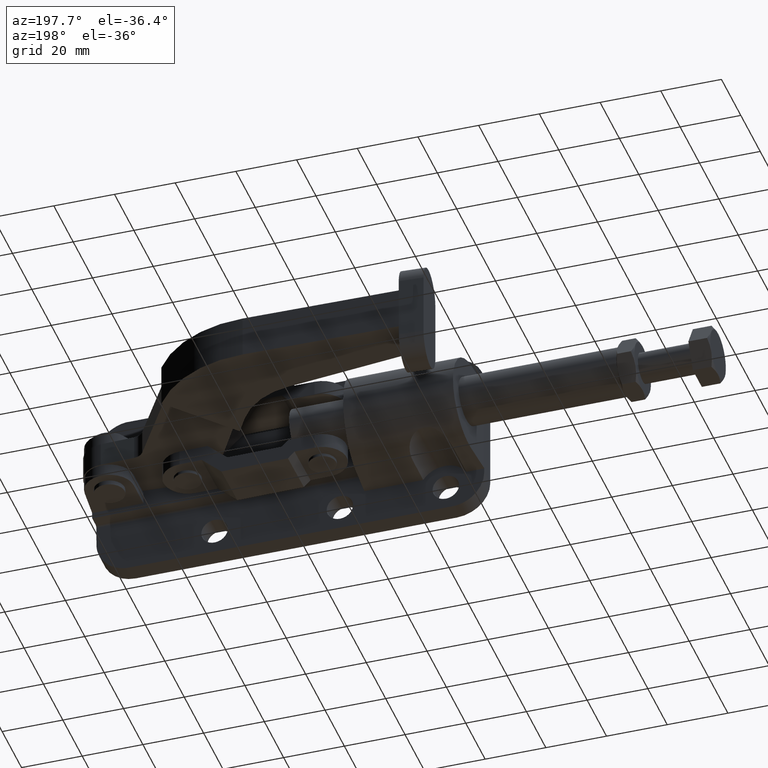
[diagram: clean part render]
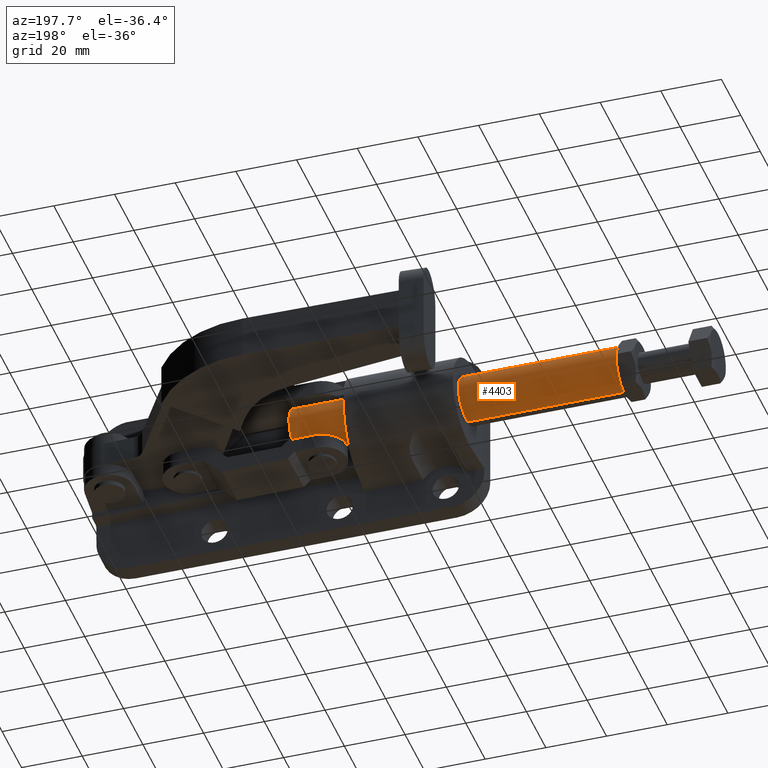
[diagram: same view with one face highlighted and labeled with its STEP entity id]
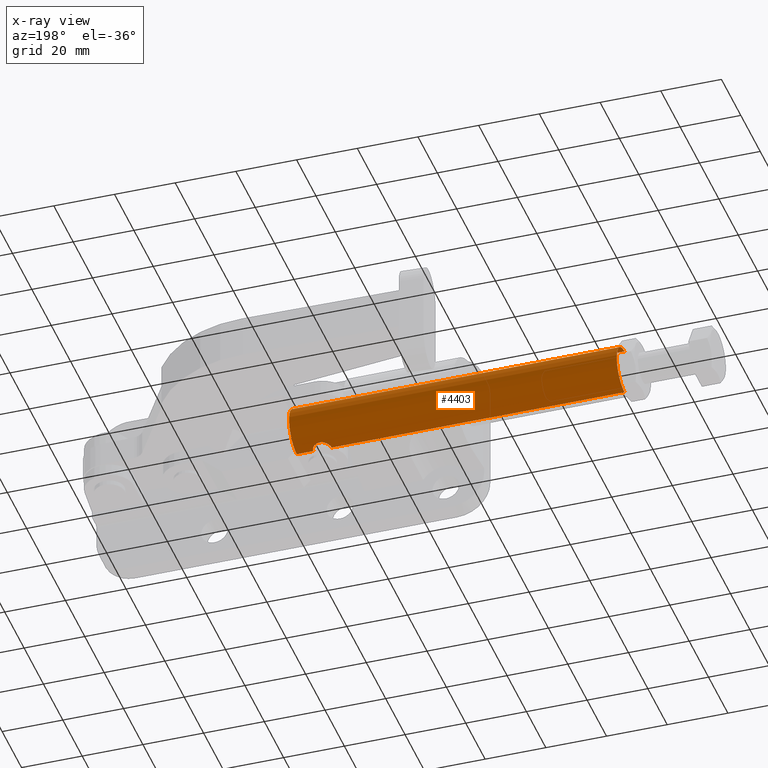
[diagram: x-ray of the same camera — body ghosted, the highlighted face saturated]
A machine part, auxiliary view. The second image highlights one B-rep face of the part: STEP entity #4403.
The next image is the same camera in x-ray: the body ghosted, the highlighted face saturated — about 0% of this face is hidden behind the body in this view.
In plain terms, the highlighted cylindrical surface (edge-blend (fillet) strip) has radius 7.95 mm, axis along (1, 0, 0).
Its self-contained STEP definition (entity closure, byte-faithful):
#28 = CARTESIAN_POINT ( 'NONE',  ( 46.10827037891992600, 22.10703702126681900, -7.807601283260506600 ) ) ;
#56 = ORIENTED_EDGE ( 'NONE', *, *, #5562, .F. ) ;
#227 = EDGE_LOOP ( 'NONE', ( #5686, #4411, #4743, #5108, #56, #2293, #3341, #5021 ) ) ;
#281 = CARTESIAN_POINT ( 'NONE',  ( 45.70954390057778500, 20.80017735060853200, -7.949999999999998400 ) ) ;
#310 = VERTEX_POINT ( 'NONE', #607 ) ;
#422 = EDGE_CURVE ( 'NONE', #6040, #4684, #6646, .T. ) ;
#456 = CARTESIAN_POINT ( 'NONE',  ( 46.45232010374655100, 22.58557041746324100, 7.699363798610372500 ) ) ;
#477 = CARTESIAN_POINT ( 'NONE',  ( -50.79045609942222900, 20.60000000000001200, -7.950000000000002000 ) ) ;
#482 = CARTESIAN_POINT ( 'NONE',  ( 50.54157647819240400, 22.98358563884341500, 7.585118646985551800 ) ) ;
#510 = CIRCLE ( 'NONE', #2287, 7.950000000000000200 ) ;
#517 = DIRECTION ( 'NONE',  ( 1.000000000000000000, 1.246135698874698700E-019, 2.584817083796331200E-017 ) ) ;
#607 = CARTESIAN_POINT ( 'NONE',  ( 45.70954390057777100, 20.60000000000000900, 7.950000000000002000 ) ) ;
#632 = VERTEX_POINT ( 'NONE', #477 ) ;
#681 = DIRECTION ( 'NONE',  ( 0.0000000000000000000, 0.0000000000000000000, -1.000000000000000000 ) ) ;
#683 = CARTESIAN_POINT ( 'NONE',  ( 45.80635890054544700, 21.38100077770596000, -7.913893248792821700 ) ) ;
#719 = EDGE_CURVE ( 'NONE', #3958, #310, #4561, .T. ) ;
#758 = CARTESIAN_POINT ( 'NONE',  ( 47.92462154198967300, 23.50230406885167900, -7.401412073730917900 ) ) ;
#872 = B_SPLINE_CURVE_WITH_KNOTS ( 'NONE', 3,
 ( #2516, #4033, #5647, #2541, #6186, #3056, #6714, #3568, #456, #4075, #971, #4600, #1486, #5145, #2041, #5679, #2554, #6212, #3087, #6735, #3588, #482, #4102, #989, #4623, #1520, #5172, #2059, #5705, #2581, #6233, #3105 ),
 .UNSPECIFIED., .F., .F.,
 ( 4, 2, 2, 2, 2, 2, 2, 2, 2, 2, 2, 2, 2, 2, 2, 4 ),
 ( 0.0000000000000000000, 0.0005917444956825114800, 0.001183488991365023000, 0.001775233487047534700, 0.002366977982730045900, 0.003550466974095084500, 0.004142211469777603800, 0.004733955965460123100, 0.005325700461142643200, 0.005917444956825162500, 0.006509189452507682700, 0.007100933948190202800, 0.007692678443872723000, 0.008284422939555242300, 0.008876167435237763300, 0.009467911930920282600 ),
 .UNSPECIFIED. ) ;
#931 = VERTEX_POINT ( 'NONE', #2770 ) ;
#958 = AXIS2_PLACEMENT_3D ( 'NONE', #1696, #5335, #2224 ) ;
#971 = CARTESIAN_POINT ( 'NONE',  ( 47.19488597691647400, 23.21879294738598500, 7.508001503940175100 ) ) ;
#989 = CARTESIAN_POINT ( 'NONE',  ( 50.96918433522413500, 22.58289311160799400, 7.700066225073173100 ) ) ;
#1180 = LINE ( 'NONE', #4876, #3948 ) ;
#1335 = CARTESIAN_POINT ( 'NONE',  ( 46.01595278244329300, 21.93549455668214800, -7.839189190632097000 ) ) ;
#1392 = CARTESIAN_POINT ( 'NONE',  ( 57.20954390057776400, 20.60000000000001200, 8.673617379884033500E-016 ) ) ;
#1412 = CARTESIAN_POINT ( 'NONE',  ( 51.70954390057777800, 20.79715833779634000, -7.950000000000000200 ) ) ;
#1464 = CARTESIAN_POINT ( 'NONE',  ( 47.37361603727662600, 23.29324723126108400, -7.480332959099664300 ) ) ;
#1486 = CARTESIAN_POINT ( 'NONE',  ( 47.92603717636311000, 23.50263468589526300, 7.401281237322391100 ) ) ;
#1520 = CARTESIAN_POINT ( 'NONE',  ( 51.30967900592926900, 22.10910097557167100, 7.807214461076218200 ) ) ;
#1551 = CARTESIAN_POINT ( 'NONE',  ( 51.61164528413525700, 21.38559418277185000, -7.913493221241958000 ) ) ;
#1593 = VERTEX_POINT ( 'NONE', #3092 ) ;
#1680 = VERTEX_POINT ( 'NONE', #4437 ) ;
#1689 = CARTESIAN_POINT ( 'NONE',  ( -73.27645174115444600, 20.60000000000001200, -7.950000000000002000 ) ) ;
#1696 = CARTESIAN_POINT ( 'NONE',  ( -50.79045609942222900, 20.60000000000001200, -1.924240712511634300E-015 ) ) ;
#1766 = DIRECTION ( 'NONE',  ( 1.000000000000000000, 1.246135698874698700E-019, 2.584817083796331200E-017 ) ) ;
#1935 = DIRECTION ( 'NONE',  ( 0.0000000000000000000, 0.0000000000000000000, -1.000000000000000000 ) ) ;
#1950 = CARTESIAN_POINT ( 'NONE',  ( 51.70954390057777800, 20.60000000000001200, -7.949999999999998400 ) ) ;
#2009 = VECTOR ( 'NONE', #5330, 1000.000000000000000 ) ;
#2040 = CARTESIAN_POINT ( 'NONE',  ( 57.20954390057776400, 20.60000000000001200, -7.950000000000000200 ) ) ;
#2041 = CARTESIAN_POINT ( 'NONE',  ( 48.51006876174925300, 23.59988806751441400, 7.362280325882051300 ) ) ;
#2046 = EDGE_CURVE ( 'NONE', #6040, #1593, #6239, .T. ) ;
#2059 = CARTESIAN_POINT ( 'NONE',  ( 51.55407475443481500, 21.57306082656374400, 7.892332227627609800 ) ) ;
#2092 = CYLINDRICAL_SURFACE ( 'NONE', #5782, 7.950000000000000200 ) ;
#2224 = DIRECTION ( 'NONE',  ( 0.0000000000000000000, 0.0000000000000000000, -1.000000000000000000 ) ) ;
#2252 = FACE_OUTER_BOUND ( 'NONE', #227, .T. ) ;
#2287 = AXIS2_PLACEMENT_3D ( 'NONE', #1392, #5045, #1935 ) ;
#2293 = ORIENTED_EDGE ( 'NONE', *, *, #422, .F. ) ;
#2366 = CARTESIAN_POINT ( 'NONE',  ( 46.44999307118173000, 22.58299983075176300, -7.700039230911754000 ) ) ;
#2368 = CARTESIAN_POINT ( 'NONE',  ( 46.72506967562716800, 22.85825603727578000, -7.623855465343574200 ) ) ;
#2431 = CARTESIAN_POINT ( 'NONE',  ( 51.40282568450562900, 21.93597371415484400, -7.839085292503983600 ) ) ;
#2516 = CARTESIAN_POINT ( 'NONE',  ( 45.70954390057777100, 20.60000000000000900, 7.950000000000002000 ) ) ;
#2541 = CARTESIAN_POINT ( 'NONE',  ( 45.80678821327443700, 21.38279435466995800, 7.913734826000008700 ) ) ;
#2554 = CARTESIAN_POINT ( 'NONE',  ( 49.10648097847115400, 23.58014800800031100, 7.370411073511662400 ) ) ;
#2581 = CARTESIAN_POINT ( 'NONE',  ( 51.68998689680648800, 20.99561852160177400, 7.942557423195459000 ) ) ;
#2592 = DIRECTION ( 'NONE',  ( 1.000000000000000000, 1.246135698874698700E-019, 2.584817083796331200E-017 ) ) ;
#2623 = CARTESIAN_POINT ( 'NONE',  ( 45.86416367370671300, 21.57097383443210200, -7.892632177562751000 ) ) ;
#2696 = EDGE_CURVE ( 'NONE', #310, #931, #872, .T. ) ;
#2770 = CARTESIAN_POINT ( 'NONE',  ( 51.70954390057777800, 20.60000000000001200, 7.950000000000002000 ) ) ;
#2793 = DIRECTION ( 'NONE',  ( 1.000000000000000000, 1.246135698874698700E-019, 2.584817083796331200E-017 ) ) ;
#2888 = VECTOR ( 'NONE', #2592, 1000.000000000000000 ) ;
#3056 = CARTESIAN_POINT ( 'NONE',  ( 46.01676654564914100, 21.93699362758754700, 7.838911342165327600 ) ) ;
#3087 = CARTESIAN_POINT ( 'NONE',  ( 49.68092775833135700, 23.44528239585019600, 7.423844993068448700 ) ) ;
#3092 = CARTESIAN_POINT ( 'NONE',  ( 45.70954390057777100, 20.60000000000001200, -7.949999999999998400 ) ) ;
#3105 = CARTESIAN_POINT ( 'NONE',  ( 51.70954390057777800, 20.60000000000001200, 7.950000000000002000 ) ) ;
#3191 = CARTESIAN_POINT ( 'NONE',  ( 47.19914561535870200, 23.19940004098251100, -7.513905794024750200 ) ) ;
#3253 = CARTESIAN_POINT ( 'NONE',  ( 51.55404719991598500, 21.57334141625862100, -7.892318447418389800 ) ) ;
#3341 = ORIENTED_EDGE ( 'NONE', *, *, #2046, .T. ) ;
#3342 = CARTESIAN_POINT ( 'NONE',  ( 49.49298379769301400, 23.50258338543266500, -7.401300513450507900 ) ) ;
#3383 = CARTESIAN_POINT ( 'NONE',  ( 51.70954390057777800, 20.60000000000001200, -7.949999999999998400 ) ) ;
#3427 = CARTESIAN_POINT ( 'NONE',  ( 49.10689103142457400, 23.58008114644375300, -7.370437976158744900 ) ) ;
#3502 = CARTESIAN_POINT ( 'NONE',  ( 47.73475735230729800, 23.44395412936826200, -7.424344195801907600 ) ) ;
#3568 = CARTESIAN_POINT ( 'NONE',  ( 46.32694754825211400, 22.43342974076256600, 7.737481681254128500 ) ) ;
#3588 = CARTESIAN_POINT ( 'NONE',  ( 50.21848999607696100, 23.20017413724920600, 7.513627608720628200 ) ) ;
#3933 = EDGE_CURVE ( 'NONE', #931, #1680, #1180, .T. ) ;
#3948 = VECTOR ( 'NONE', #1766, 1000.000000000000000 ) ;
#3958 = VERTEX_POINT ( 'NONE', #6483 ) ;
#4033 = CARTESIAN_POINT ( 'NONE',  ( 45.70954390057777100, 20.80021796150009500, 7.950000000000000200 ) ) ;
#4075 = CARTESIAN_POINT ( 'NONE',  ( 46.86361238174352200, 22.99640009900677700, 7.585547950524615500 ) ) ;
#4102 = CARTESIAN_POINT ( 'NONE',  ( 50.69419124622716300, 22.85809984264603800, 7.623901236454797100 ) ) ;
#4153 = VECTOR ( 'NONE', #517, 1000.000000000000000 ) ;
#4211 = CARTESIAN_POINT ( 'NONE',  ( 46.87471235425713400, 22.98150724325568100, -7.585781706907951600 ) ) ;
#4212 = CARTESIAN_POINT ( 'NONE',  ( 51.68981801630086900, 20.99663188929052300, -7.942494339125791400 ) ) ;
#4298 = CARTESIAN_POINT ( 'NONE',  ( 48.51047029410928200, 23.59991052985415300, -7.362271172820296500 ) ) ;
#4312 = EDGE_CURVE ( 'NONE', #632, #1593, #4419, .T. ) ;
#4321 = CARTESIAN_POINT ( 'NONE',  ( 48.90591171820003800, 23.60008886003805600, -7.362198505959081100 ) ) ;
#4403 = ADVANCED_FACE ( 'NONE', ( #2252 ), #2092, .T. ) ;
#4411 = ORIENTED_EDGE ( 'NONE', *, *, #719, .T. ) ;
#4419 = LINE ( 'NONE', #1689, #2009 ) ;
#4437 = CARTESIAN_POINT ( 'NONE',  ( 57.20954390057776400, 20.60000000000001200, 7.950000000000000200 ) ) ;
#4470 = CARTESIAN_POINT ( 'NONE',  ( 46.32449865685387600, 22.43012122640469700, -7.738246227570099800 ) ) ;
#4561 = LINE ( 'NONE', #5377, #2888 ) ;
#4587 = CARTESIAN_POINT ( 'NONE',  ( 51.30850779807412500, 22.11104594502966900, -7.806827108133613400 ) ) ;
#4600 = CARTESIAN_POINT ( 'NONE',  ( 47.73512602208299400, 23.44404220781212800, 7.424307354312240600 ) ) ;
#4623 = CARTESIAN_POINT ( 'NONE',  ( 51.09224506101713100, 22.43325489242321800, 7.737516390620141000 ) ) ;
#4684 = VERTEX_POINT ( 'NONE', #2040 ) ;
#4743 = ORIENTED_EDGE ( 'NONE', *, *, #2696, .T. ) ;
#4843 = CARTESIAN_POINT ( 'NONE',  ( 50.69042628164203300, 22.86154964779978000, -7.622899134152822500 ) ) ;
#4845 = CARTESIAN_POINT ( 'NONE',  ( 50.04329712118512700, 23.29439518361024500, -7.479921503772144900 ) ) ;
#4876 = CARTESIAN_POINT ( 'NONE',  ( -73.27645174115444600, 20.60000000000001200, 7.949999999999998400 ) ) ;
#4889 = CARTESIAN_POINT ( 'NONE',  ( 49.68019969865234500, 23.44543325007049700, -7.423779409939945700 ) ) ;
#5021 = ORIENTED_EDGE ( 'NONE', *, *, #4312, .F. ) ;
#5045 = DIRECTION ( 'NONE',  ( 1.000000000000000000, 1.246135698874698700E-019, 2.584817083796331200E-017 ) ) ;
#5108 = ORIENTED_EDGE ( 'NONE', *, *, #3933, .T. ) ;
#5145 = CARTESIAN_POINT ( 'NONE',  ( 48.31415414533966400, 23.58040900684866500, 7.370306250461924300 ) ) ;
#5172 = CARTESIAN_POINT ( 'NONE',  ( 51.40376998077745400, 21.93392240385616500, 7.839413650518319600 ) ) ;
#5330 = DIRECTION ( 'NONE',  ( 1.000000000000000000, 1.246135698874698700E-019, 2.584817083796331200E-017 ) ) ;
#5335 = DIRECTION ( 'NONE',  ( 1.000000000000000000, -2.915428370044453700E-018, 2.872416155677743400E-017 ) ) ;
#5377 = CARTESIAN_POINT ( 'NONE',  ( -73.27645174115444600, 20.60000000000001200, 7.949999999999998400 ) ) ;
#5426 = CARTESIAN_POINT ( 'NONE',  ( 50.54010843447795800, 22.98467841721721100, -7.584770263085003400 ) ) ;
#5428 = CARTESIAN_POINT ( 'NONE',  ( 48.31420933589313900, 23.58046684246783200, -7.370284051119922400 ) ) ;
#5562 = EDGE_CURVE ( 'NONE', #4684, #1680, #510, .T. ) ;
#5637 = CARTESIAN_POINT ( 'NONE',  ( 51.09150395844140000, 22.43415906377343600, -7.737290861345349500 ) ) ;
#5647 = CARTESIAN_POINT ( 'NONE',  ( 45.72938352641251900, 20.99673886390201400, 7.942453284207484600 ) ) ;
#5679 = CARTESIAN_POINT ( 'NONE',  ( 48.90563790212027600, 23.60011097981141500, 7.362189492487964100 ) ) ;
#5686 = ORIENTED_EDGE ( 'NONE', *, *, #5894, .T. ) ;
#5705 = CARTESIAN_POINT ( 'NONE',  ( 51.61167876853298300, 21.38560020150306000, 7.913505213165026800 ) ) ;
#5722 = CARTESIAN_POINT ( 'NONE',  ( -73.27645174115444600, 20.60000000000001200, -7.950000000000002000 ) ) ;
#5782 = AXIS2_PLACEMENT_3D ( 'NONE', #6480, #2793, #681 ) ;
#5894 = EDGE_CURVE ( 'NONE', #632, #3958, #6226, .T. ) ;
#6040 = VERTEX_POINT ( 'NONE', #3383 ) ;
#6102 = CARTESIAN_POINT ( 'NONE',  ( 50.96812896323878300, 22.58426191108902600, -7.699733936126137700 ) ) ;
#6186 = CARTESIAN_POINT ( 'NONE',  ( 45.86539239105737000, 21.57437366257453000, 7.892191011133666800 ) ) ;
#6212 = CARTESIAN_POINT ( 'NONE',  ( 49.49294209444010300, 23.50260718376566500, 7.401291311580946400 ) ) ;
#6226 = CIRCLE ( 'NONE', #958, 7.950000000000000200 ) ;
#6233 = CARTESIAN_POINT ( 'NONE',  ( 51.70954390057777100, 20.79719833620699600, 7.950000000000000200 ) ) ;
#6239 = B_SPLINE_CURVE_WITH_KNOTS ( 'NONE', 3,
 ( #1950, #1412, #4212, #1551, #3253, #2431, #4587, #5637, #6102, #4843, #5426, #6579, #4845, #4889, #3342, #3427, #4321, #4298, #5428, #758, #3502, #1464, #3191, #4211, #2368, #2366, #4470, #28, #1335, #2623, #683, #6648, #281, #6434 ),
 .UNSPECIFIED., .F., .F.,
 ( 4, 2, 2, 2, 2, 2, 2, 2, 2, 2, 2, 2, 2, 2, 2, 2, 4 ),
 ( 0.009467911930920293000, 0.01005953640104983000, 0.01065116087117936600, 0.01124278534130890300, 0.01183440981143844000, 0.01242603428156797600, 0.01301765875169751500, 0.01360928322182705000, 0.01420090769195658800, 0.01479253216208612300, 0.01538415663221566100, 0.01597578110234519600, 0.01656740557247473500, 0.01715903004260427300, 0.01775065451273380800, 0.01834227898286334300, 0.01893390345299288100 ),
 .UNSPECIFIED. ) ;
#6434 = CARTESIAN_POINT ( 'NONE',  ( 45.70954390057777100, 20.60000000000001200, -7.949999999999998400 ) ) ;
#6480 = CARTESIAN_POINT ( 'NONE',  ( -73.27645174115444600, 20.60000000000001200, -2.505462569320826900E-015 ) ) ;
#6483 = CARTESIAN_POINT ( 'NONE',  ( -50.79045609942222900, 20.60000000000001200, 7.949999999999998400 ) ) ;
#6579 = CARTESIAN_POINT ( 'NONE',  ( 50.21763172377788500, 23.20064007194964600, -7.513461406934214700 ) ) ;
#6646 = LINE ( 'NONE', #5722, #4153 ) ;
#6648 = CARTESIAN_POINT ( 'NONE',  ( 45.72940099438236000, 20.99647650351963800, -7.942447667452569200 ) ) ;
#6714 = CARTESIAN_POINT ( 'NONE',  ( 46.10912681486178100, 22.10866198094355200, 7.807305963603027100 ) ) ;
#6735 = CARTESIAN_POINT ( 'NONE',  ( 50.04651561874715100, 23.29290273423577800, 7.480466647020627100 ) ) ;